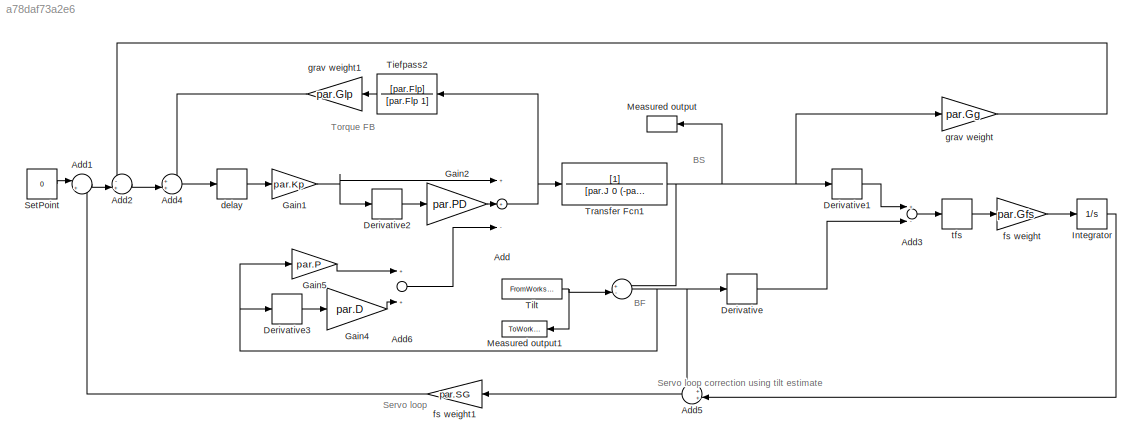
MODEL slx_a78daf73a2e6
KIND model
CONFIG AbsTol = auto
CONFIG FixedStep = 1/sr
CONFIG MaxStep = auto
CONFIG MinStep = auto
CONFIG RelTol = 1e-3
CONFIG SampleTimeConstraint = Unconstrained
CONFIG Solver = ode5
CONFIG SolverMode = Auto
CONFIG SolverName = ode5
CONFIG StartTime = 0
CONFIG StopTime = sim_time-1/sr
BLOCK [Sum]  
  IconShape = round
  InputSameDT = off
  Inputs = +-|
  OutDataTypeStr = Inherit: Inherit via internal rule
  Ports = [2, 1]
  SaturateOnIntegerOverflow = off
BLOCK [Sum] Add
  InputSameDT = off
  Inputs = ++-
  OutDataTypeStr = Inherit: Inherit via internal rule
  Ports = [3, 1]
  SaturateOnIntegerOverflow = off
BLOCK [Sum] Add1
  IconShape = round
  InputSameDT = off
  Inputs = |+-
  OutDataTypeStr = Inherit: Inherit via internal rule
  Ports = [2, 1]
  SaturateOnIntegerOverflow = off
BLOCK [Sum] Add2
  IconShape = round
  InputSameDT = off
  Inputs = -+|
  OutDataTypeStr = Inherit: Inherit via internal rule
  Ports = [2, 1]
  SaturateOnIntegerOverflow = off
BLOCK [Sum] Add3
  InputSameDT = off
  Inputs = +-
  OutDataTypeStr = Inherit: Inherit via internal rule
  Ports = [2, 1]
  SaturateOnIntegerOverflow = off
BLOCK [Sum] Add4
  IconShape = round
  InputSameDT = off
  Inputs = ++|
  OutDataTypeStr = Inherit: Inherit via internal rule
  Ports = [2, 1]
  SaturateOnIntegerOverflow = off
BLOCK [Sum] Add5
  IconShape = round
  InputSameDT = off
  Inputs = ++|
  OutDataTypeStr = Inherit: Inherit via internal rule
  Ports = [2, 1]
  SaturateOnIntegerOverflow = off
BLOCK [Sum] Add6
  InputSameDT = off
  OutDataTypeStr = Inherit: Inherit via internal rule
  Ports = [2, 1]
  SaturateOnIntegerOverflow = off
BLOCK [Derivative] Derivative
BLOCK [Derivative] Derivative1
BLOCK [Derivative] Derivative2
BLOCK [Derivative] Derivative3
BLOCK [Gain] Gain1
  Gain = par.Kp
  OutDataTypeStr = Inherit: Inherit via internal rule
  ParamDataTypeStr = Inherit: Inherit via internal rule
  SaturateOnIntegerOverflow = off
BLOCK [Gain] Gain2
  Gain = par.PD
  OutDataTypeStr = Inherit: Inherit via internal rule
  ParamDataTypeStr = Inherit: Inherit via internal rule
  SaturateOnIntegerOverflow = off
BLOCK [Gain] Gain4
  Gain = par.D
  OutDataTypeStr = Inherit: Inherit via internal rule
  ParamDataTypeStr = Inherit: Inherit via internal rule
  SaturateOnIntegerOverflow = off
BLOCK [Gain] Gain5
  Gain = par.P
  OutDataTypeStr = Inherit: Inherit via internal rule
  ParamDataTypeStr = Inherit: Inherit via internal rule
  SaturateOnIntegerOverflow = off
BLOCK [Integrator] Integrator
  Ports = [1, 1]
BLOCK [ToWorkspace] Measured output
  MaxDataPoints = inf
  Ports = [1]
  SampleTime = -1
  VariableName = resp
BLOCK [ToWorkspace] Measured output1
  MaxDataPoints = inf
  Ports = [1]
  SampleTime = -1
  VariableName = stim_out
BLOCK [Constant] SetPoint
  Value = 0
BLOCK [TransferFcn] Tiefpass2
  Denominator = [par.Flp 1]
  Numerator = [par.Flp]
BLOCK [FromWorkspace] Tilt
  VariableName = [t,stim]
  ZeroCross = on
BLOCK [TransferFcn] Transfer Fcn1
  Denominator = [par.J 0 (-par.mgh)]
BLOCK [TransportDelay] delay
  DelayTime = par.dt
  FixedBuffer = on
  Ports = [1, 1]
BLOCK [Gain] fs weight
  Gain = par.Gfs
  OutDataTypeStr = Inherit: Inherit via internal rule
  ParamDataTypeStr = Inherit: Inherit via internal rule
  SaturateOnIntegerOverflow = off
BLOCK [Gain] fs weight1
  Gain = par.SG
  OutDataTypeStr = Inherit: Inherit via internal rule
  ParamDataTypeStr = Inherit: Inherit via internal rule
  SaturateOnIntegerOverflow = off
BLOCK [Gain] grav weight
  Gain = par.Gg
  OutDataTypeStr = Inherit: Inherit via internal rule
  ParamDataTypeStr = Inherit: Inherit via internal rule
  SaturateOnIntegerOverflow = off
BLOCK [Gain] grav weight1
  Gain = par.Glp
  OutDataTypeStr = Inherit: Inherit via internal rule
  ParamDataTypeStr = Inherit: Inherit via internal rule
  SaturateOnIntegerOverflow = off
BLOCK [DeadZone] tfs
  LinearizeAsGain = off
  LowerValue = -par.tfs
  SaturateOnIntegerOverflow = off
  UpperValue = par.tfs
ANNOTATION (root): BF
ANNOTATION (root): BS
ANNOTATION (root): Servo loop
ANNOTATION (root): Servo loop correction using tilt estimate
ANNOTATION (root): Torque FB
NET  :1 -> Add5:1, Derivative3:1, Derivative:1, Gain5:1
LINE Add1:1 -> Add2:2
LINE Add2:1 -> Add4:2
LINE Add3:1 -> tfs:1
LINE Add4:1 -> delay:1
LINE Add5:1 -> fs weight1:1
LINE Add6:1 -> Add:3
NET Add:1 -> Tiefpass2:1, Transfer Fcn1:1
LINE Derivative1:1 -> Add3:1
LINE Derivative2:1 -> Gain2:1
LINE Derivative3:1 -> Gain4:1
LINE Derivative:1 -> Add3:2
NET Gain1:1 -> Add:1, Derivative2:1
LINE Gain2:1 -> Add:2
LINE Gain4:1 -> Add6:2
LINE Gain5:1 -> Add6:1
LINE Integrator:1 -> Add5:2
LINE SetPoint:1 -> Add1:1
LINE Tiefpass2:1 -> grav weight1:1
NET Tilt:1 ->  :2, Measured output1:1
NET Transfer Fcn1:1 ->  :1, Derivative1:1, Measured output:1, grav weight:1
LINE delay:1 -> Gain1:1
LINE fs weight1:1 -> Add1:2
LINE fs weight:1 -> Integrator:1
LINE grav weight1:1 -> Add4:1
LINE grav weight:1 -> Add2:1
LINE tfs:1 -> fs weight:1
note: NET lines group one-source signal fan-out (src -> all destinations, sorted); 1:1 wires keep LINE
